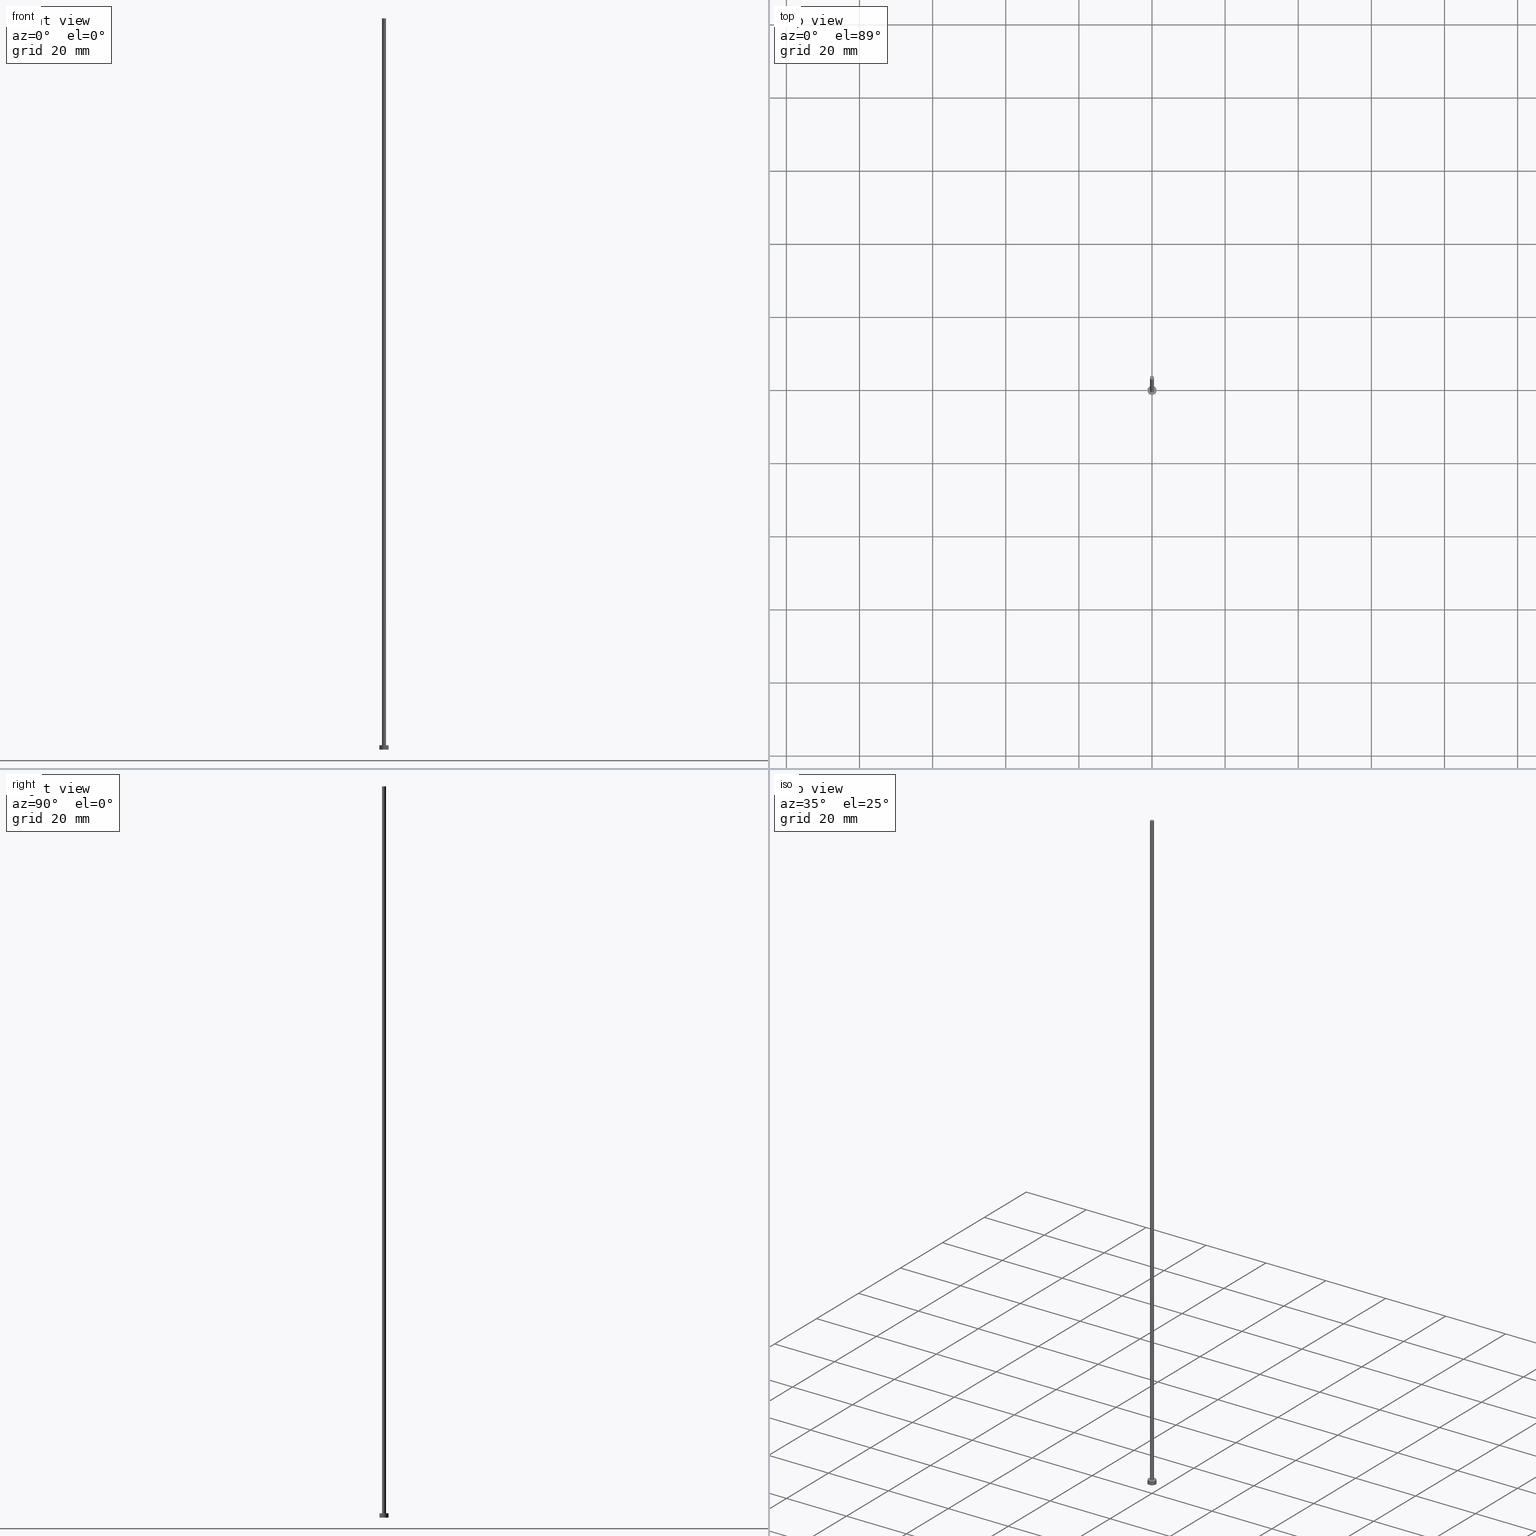
[diagram: canonical four-view strip — front | top / right | iso, engineering-drawing reading convention]
A machine part, canonical four-view strip (front | top / right | iso — engineering-drawing reading convention). The complete STEP part file that produces these views, byte-faithful:
ISO-10303-21;
HEADER;
FILE_DESCRIPTION (( 'STEP AP203' ),
    '1' );
FILE_NAME ('eeb2.STEP',
    '2026-02-06T12:33:54',
    ( '' ),
    ( '' ),
    'SwSTEP 2.0',
    'SolidWorks 2019',
    '' );
FILE_SCHEMA (( 'CONFIG_CONTROL_DESIGN' ));
ENDSEC;

DATA;
#1 = CARTESIAN_POINT ( 'NONE',  ( -0.5500000000000000444, 0.000000000000000000, 200.0000000000000000 ) ) ;
#2 = ORIENTED_EDGE ( 'NONE', *, *, #185, .F. ) ;
#3 = AXIS2_PLACEMENT_3D ( 'NONE', #98, #168, #76 ) ;
#4 = CARTESIAN_POINT ( 'NONE',  ( 0.000000000000000000, 0.000000000000000000, 1.199999999999999956 ) ) ;
#5 = ORIENTED_EDGE ( 'NONE', *, *, #52, .T. ) ;
#6 = DIRECTION ( 'NONE',  ( -0.000000000000000000, -0.000000000000000000, -1.000000000000000000 ) ) ;
#7 = CALENDAR_DATE ( 2026, 6, 2 ) ;
#8 = APPROVAL_ROLE ( '' ) ;
#9 = AXIS2_PLACEMENT_3D ( 'NONE', #122, #15, #196 ) ;
#10 = CC_DESIGN_DATE_AND_TIME_ASSIGNMENT ( #92, #163, ( #129 ) ) ;
#11 = AXIS2_PLACEMENT_3D ( 'NONE', #66, #41, #157 ) ;
#12 = EDGE_CURVE ( 'NONE', #194, #218, #204, .T. ) ;
#13 = COORDINATED_UNIVERSAL_TIME_OFFSET ( 1, 0, .AHEAD. ) ;
#14 = APPROVAL_DATE_TIME ( #93, #47 ) ;
#15 = DIRECTION ( 'NONE',  ( 0.000000000000000000, 0.000000000000000000, 1.000000000000000000 ) ) ;
#16 = CARTESIAN_POINT ( 'NONE',  ( -0.5500000000000000444, 0.000000000000000000, 200.0000000000000000 ) ) ;
#17 = VERTEX_POINT ( 'NONE', #23 ) ;
#18 = CARTESIAN_POINT ( 'NONE',  ( -0.5500000000000000444, 0.000000000000000000, 1.199999999999999956 ) ) ;
#19 = MANIFOLD_SOLID_BREP ( 'P�idat vysunut�m3', #139 ) ;
#20 = APPROVAL ( #243, 'NEUR�EN�' ) ;
#21 = EDGE_LOOP ( 'NONE', ( #5, #138 ) ) ;
#22 = PLANE ( 'NONE',  #237 ) ;
#23 = CARTESIAN_POINT ( 'NONE',  ( 0.5500000000000000444, 6.735557395310442516E-17, 200.0000000000000000 ) ) ;
#24 = CARTESIAN_POINT ( 'NONE',  ( 0.000000000000000000, 0.000000000000000000, 0.000000000000000000 ) ) ;
#25 = FACE_OUTER_BOUND ( 'NONE', #105, .T. ) ;
#26 = CC_DESIGN_PERSON_AND_ORGANIZATION_ASSIGNMENT ( #147, #165, ( #62 ) ) ;
#27 = CARTESIAN_POINT ( 'NONE',  ( 0.000000000000000000, 0.000000000000000000, 0.000000000000000000 ) ) ;
#28 = PERSON_AND_ORGANIZATION_ROLE ( 'classification_officer' ) ;
#29 = PERSON_AND_ORGANIZATION ( #177, #209 ) ;
#30 = PERSON_AND_ORGANIZATION ( #177, #209 ) ;
#31 = ADVANCED_FACE ( 'NONE', ( #89 ), #183, .T. ) ;
#32 = DIRECTION ( 'NONE',  ( -0.000000000000000000, -0.000000000000000000, -1.000000000000000000 ) ) ;
#33 = DIRECTION ( 'NONE',  ( 1.000000000000000000, 0.000000000000000000, 0.000000000000000000 ) ) ;
#34 = APPROVAL ( #186, 'NEUR�EN�' ) ;
#35 = DIRECTION ( 'NONE',  ( -0.000000000000000000, -0.000000000000000000, -1.000000000000000000 ) ) ;
#36 = ORIENTED_EDGE ( 'NONE', *, *, #120, .F. ) ;
#37 = FACE_OUTER_BOUND ( 'NONE', #63, .T. ) ;
#38 = CC_DESIGN_SECURITY_CLASSIFICATION ( #85, ( #45 ) ) ;
#39 = ORIENTED_EDGE ( 'NONE', *, *, #211, .F. ) ;
#40 = ORIENTED_EDGE ( 'NONE', *, *, #136, .T. ) ;
#41 = DIRECTION ( 'NONE',  ( -0.000000000000000000, -0.000000000000000000, -1.000000000000000000 ) ) ;
#42 = PRODUCT_DEFINITION_SHAPE ( 'NONE', 'NONE',  #129 ) ;
#43 = AXIS2_PLACEMENT_3D ( 'NONE', #215, #172, #229 ) ;
#44 = CIRCLE ( 'NONE', #187, 0.5500000000000000444 ) ;
#45 = PRODUCT_DEFINITION_FORMATION_WITH_SPECIFIED_SOURCE ( 'LIBOVOLN�', '', #62, .NOT_KNOWN. ) ;
#46 = FACE_OUTER_BOUND ( 'NONE', #153, .T. ) ;
#47 = APPROVAL ( #53, 'NEUR�EN�' ) ;
#48 = DIRECTION ( 'NONE',  ( 0.000000000000000000, 0.000000000000000000, 1.000000000000000000 ) ) ;
#49 = APPLICATION_PROTOCOL_DEFINITION ( 'international standard', 'config_control_design', 1994, #234 ) ;
#50 = COORDINATED_UNIVERSAL_TIME_OFFSET ( 1, 0, .AHEAD. ) ;
#51 = PERSON_AND_ORGANIZATION ( #177, #209 ) ;
#52 = EDGE_CURVE ( 'NONE', #126, #194, #77, .T. ) ;
#53 = APPROVAL_STATUS ( 'not_yet_approved' ) ;
#54 = PLANE ( 'NONE',  #43 ) ;
#55 = CARTESIAN_POINT ( 'NONE',  ( 0.000000000000000000, 0.000000000000000000, 200.0000000000000000 ) ) ;
#56 = ORIENTED_EDGE ( 'NONE', *, *, #193, .T. ) ;
#57 = LINE ( 'NONE', #213, #248 ) ;
#58 = LINE ( 'NONE', #16, #84 ) ;
#59 = ORIENTED_EDGE ( 'NONE', *, *, #81, .T. ) ;
#60 = EDGE_CURVE ( 'NONE', #241, #102, #233, .T. ) ;
#61 = CARTESIAN_POINT ( 'NONE',  ( 0.000000000000000000, 0.000000000000000000, 1.199999999999999956 ) ) ;
#62 = PRODUCT ( 'eeb2', 'eeb2', '', ( #111 ) ) ;
#63 = EDGE_LOOP ( 'NONE', ( #181, #2, #223, #179 ) ) ;
#64 = CARTESIAN_POINT ( 'NONE',  ( 0.5500000000000000444, 6.735557395310442516E-17, 1.199999999999999956 ) ) ;
#65 = CIRCLE ( 'NONE', #158, 1.250000000000000000 ) ;
#66 = CARTESIAN_POINT ( 'NONE',  ( 0.000000000000000000, 0.000000000000000000, 1.199999999999999956 ) ) ;
#67 = DATE_AND_TIME ( #91, #188 ) ;
#68 = SHAPE_DEFINITION_REPRESENTATION ( #42, #160 ) ;
#69 = AXIS2_PLACEMENT_3D ( 'NONE', #189, #166, #164 ) ;
#70 = APPROVAL_ROLE ( '' ) ;
#71 = CALENDAR_DATE ( 2026, 6, 2 ) ;
#72 =( NAMED_UNIT ( * ) SI_UNIT ( $, .STERADIAN. ) SOLID_ANGLE_UNIT ( ) );
#73 = LOCAL_TIME ( 13, 33, 54.00000000000000000, #115 ) ;
#74 = CARTESIAN_POINT ( 'NONE',  ( 0.000000000000000000, 0.000000000000000000, 200.0000000000000000 ) ) ;
#75 = ORIENTED_EDGE ( 'NONE', *, *, #185, .T. ) ;
#76 = DIRECTION ( 'NONE',  ( 1.000000000000000000, 0.000000000000000000, 0.000000000000000000 ) ) ;
#77 = CIRCLE ( 'NONE', #221, 1.250000000000000000 ) ;
#78 = PERSON_AND_ORGANIZATION_ROLE ( 'creator' ) ;
#79 = ORIENTED_EDGE ( 'NONE', *, *, #12, .T. ) ;
#80 = VERTEX_POINT ( 'NONE', #178 ) ;
#81 = EDGE_CURVE ( 'NONE', #80, #218, #65, .T. ) ;
#82 = LINE ( 'NONE', #231, #252 ) ;
#83 = ORIENTED_EDGE ( 'NONE', *, *, #175, .F. ) ;
#84 = VECTOR ( 'NONE', #135, 1000.000000000000000 ) ;
#85 = SECURITY_CLASSIFICATION ( '', '', #112 ) ;
#86 = EDGE_CURVE ( 'NONE', #102, #241, #254, .T. ) ;
#87 = DIRECTION ( 'NONE',  ( 1.000000000000000000, 0.000000000000000000, 0.000000000000000000 ) ) ;
#88 = CARTESIAN_POINT ( 'NONE',  ( 1.250000000000000000, 1.530808498934191571E-16, 1.199999999999999956 ) ) ;
#89 = FACE_OUTER_BOUND ( 'NONE', #195, .T. ) ;
#90 = DIRECTION ( 'NONE',  ( 0.000000000000000000, 0.000000000000000000, 1.000000000000000000 ) ) ;
#91 = CALENDAR_DATE ( 2026, 6, 2 ) ;
#92 = DATE_AND_TIME ( #7, #108 ) ;
#93 = DATE_AND_TIME ( #190, #73 ) ;
#94 = ADVANCED_FACE ( 'NONE', ( #46 ), #125, .T. ) ;
#95 = VECTOR ( 'NONE', #6, 1000.000000000000000 ) ;
#96 = ORIENTED_EDGE ( 'NONE', *, *, #228, .F. ) ;
#97 = UNCERTAINTY_MEASURE_WITH_UNIT (LENGTH_MEASURE( 1.000000000000000082E-05 ), #148, 'distance_accuracy_value', 'NONE');
#98 = CARTESIAN_POINT ( 'NONE',  ( 0.000000000000000000, 0.000000000000000000, 1.199999999999999956 ) ) ;
#99 = ORIENTED_EDGE ( 'NONE', *, *, #193, .F. ) ;
#100 = LOCAL_TIME ( 13, 33, 54.00000000000000000, #50 ) ;
#101 = CARTESIAN_POINT ( 'NONE',  ( -1.250000000000000000, 0.000000000000000000, 1.199999999999999956 ) ) ;
#102 = VERTEX_POINT ( 'NONE', #64 ) ;
#103 = ADVANCED_FACE ( 'NONE', ( #155 ), #22, .F. ) ;
#104 = DIRECTION ( 'NONE',  ( -1.000000000000000000, 0.000000000000000000, 0.000000000000000000 ) ) ;
#105 = EDGE_LOOP ( 'NONE', ( #75, #107 ) ) ;
#106 = PLANE ( 'NONE',  #227 ) ;
#107 = ORIENTED_EDGE ( 'NONE', *, *, #211, .T. ) ;
#108 = LOCAL_TIME ( 13, 33, 54.00000000000000000, #13 ) ;
#109 = ADVANCED_FACE ( 'NONE', ( #25 ), #106, .T. ) ;
#110 = DIRECTION ( 'NONE',  ( 0.000000000000000000, 0.000000000000000000, 1.000000000000000000 ) ) ;
#111 = MECHANICAL_CONTEXT ( 'NONE', #205, 'mechanical' ) ;
#112 = SECURITY_CLASSIFICATION_LEVEL ( 'unclassified' ) ;
#113 = APPROVAL_PERSON_ORGANIZATION ( #242, #34, #8 ) ;
#114 = AXIS2_PLACEMENT_3D ( 'NONE', #238, #48, #206 ) ;
#115 = COORDINATED_UNIVERSAL_TIME_OFFSET ( 1, 0, .AHEAD. ) ;
#116 = DIRECTION ( 'NONE',  ( -1.000000000000000000, 0.000000000000000000, 0.000000000000000000 ) ) ;
#117 = CIRCLE ( 'NONE', #3, 1.250000000000000000 ) ;
#118 = DIRECTION ( 'NONE',  ( -0.000000000000000000, -0.000000000000000000, -1.000000000000000000 ) ) ;
#119 = ORIENTED_EDGE ( 'NONE', *, *, #52, .F. ) ;
#120 = EDGE_CURVE ( 'NONE', #201, #241, #58, .T. ) ;
#121 = ORIENTED_EDGE ( 'NONE', *, *, #86, .F. ) ;
#122 = CARTESIAN_POINT ( 'NONE',  ( 0.000000000000000000, 0.000000000000000000, 200.0000000000000000 ) ) ;
#123 = ORIENTED_EDGE ( 'NONE', *, *, #228, .T. ) ;
#124 = CC_DESIGN_APPROVAL ( #34, ( #85 ) ) ;
#125 = CYLINDRICAL_SURFACE ( 'NONE', #133, 1.250000000000000000 ) ;
#126 = VERTEX_POINT ( 'NONE', #101 ) ;
#127 = DATE_AND_TIME ( #162, #100 ) ;
#128 =( GEOMETRIC_REPRESENTATION_CONTEXT ( 3 ) GLOBAL_UNCERTAINTY_ASSIGNED_CONTEXT ( ( #97 ) ) GLOBAL_UNIT_ASSIGNED_CONTEXT ( ( #148, #247, #72 ) ) REPRESENTATION_CONTEXT ( 'NONE', 'WORKASPACE' ) );
#129 = PRODUCT_DEFINITION ( 'NEZN�M�', '', #45, #251 ) ;
#130 = APPLICATION_PROTOCOL_DEFINITION ( 'international standard', 'config_control_design', 1994, #205 ) ;
#131 = APPROVAL_PERSON_ORGANIZATION ( #245, #20, #70 ) ;
#132 = APPROVAL_ROLE ( '' ) ;
#133 = AXIS2_PLACEMENT_3D ( 'NONE', #61, #203, #104 ) ;
#134 = FACE_OUTER_BOUND ( 'NONE', #21, .T. ) ;
#135 = DIRECTION ( 'NONE',  ( -0.000000000000000000, -0.000000000000000000, -1.000000000000000000 ) ) ;
#136 = EDGE_CURVE ( 'NONE', #17, #102, #82, .T. ) ;
#137 = FACE_BOUND ( 'NONE', #198, .T. ) ;
#138 = ORIENTED_EDGE ( 'NONE', *, *, #175, .T. ) ;
#139 = CLOSED_SHELL ( 'NONE', ( #246, #94, #31, #239, #103, #167, #109 ) ) ;
#140 = EDGE_LOOP ( 'NONE', ( #173, #99 ) ) ;
#141 = DIRECTION ( 'NONE',  ( 1.000000000000000000, 0.000000000000000000, 0.000000000000000000 ) ) ;
#142 = DIRECTION ( 'NONE',  ( 0.000000000000000000, 0.000000000000000000, 1.000000000000000000 ) ) ;
#143 = DATE_TIME_ROLE ( 'classification_date' ) ;
#144 = CIRCLE ( 'NONE', #199, 1.250000000000000000 ) ;
#145 = COORDINATED_UNIVERSAL_TIME_OFFSET ( 1, 0, .AHEAD. ) ;
#146 = CC_DESIGN_DATE_AND_TIME_ASSIGNMENT ( #67, #143, ( #85 ) ) ;
#147 = PERSON_AND_ORGANIZATION ( #177, #209 ) ;
#148 =( LENGTH_UNIT ( ) NAMED_UNIT ( * ) SI_UNIT ( .MILLI., .METRE. ) );
#149 = DIRECTION ( 'NONE',  ( 1.000000000000000000, 0.000000000000000000, 0.000000000000000000 ) ) ;
#150 = DIRECTION ( 'NONE',  ( 0.000000000000000000, 0.000000000000000000, 1.000000000000000000 ) ) ;
#151 = CC_DESIGN_PERSON_AND_ORGANIZATION_ASSIGNMENT ( #51, #184, ( #129 ) ) ;
#152 = DIRECTION ( 'NONE',  ( 1.000000000000000000, 0.000000000000000000, -0.000000000000000000 ) ) ;
#153 = EDGE_LOOP ( 'NONE', ( #83, #79, #56, #96 ) ) ;
#154 = DIRECTION ( 'NONE',  ( 0.000000000000000000, 0.000000000000000000, 1.000000000000000000 ) ) ;
#155 = FACE_OUTER_BOUND ( 'NONE', #140, .T. ) ;
#156 = CARTESIAN_POINT ( 'NONE',  ( 0.000000000000000000, 0.000000000000000000, 1.199999999999999956 ) ) ;
#157 = DIRECTION ( 'NONE',  ( -1.000000000000000000, 0.000000000000000000, 0.000000000000000000 ) ) ;
#158 = AXIS2_PLACEMENT_3D ( 'NONE', #27, #110, #87 ) ;
#159 = DIRECTION ( 'NONE',  ( 1.000000000000000000, 0.000000000000000000, 0.000000000000000000 ) ) ;
#160 = ADVANCED_BREP_SHAPE_REPRESENTATION ( 'eeb2', ( #19, #69 ), #128 ) ;
#161 = PERSON_AND_ORGANIZATION ( #177, #209 ) ;
#162 = CALENDAR_DATE ( 2026, 6, 2 ) ;
#163 = DATE_TIME_ROLE ( 'creation_date' ) ;
#164 = DIRECTION ( 'NONE',  ( 1.000000000000000000, 0.000000000000000000, 0.000000000000000000 ) ) ;
#165 = PERSON_AND_ORGANIZATION_ROLE ( 'design_owner' ) ;
#166 = DIRECTION ( 'NONE',  ( 0.000000000000000000, 0.000000000000000000, 1.000000000000000000 ) ) ;
#167 = ADVANCED_FACE ( 'NONE', ( #37 ), #249, .T. ) ;
#168 = DIRECTION ( 'NONE',  ( 0.000000000000000000, 0.000000000000000000, 1.000000000000000000 ) ) ;
#169 = CC_DESIGN_PERSON_AND_ORGANIZATION_ASSIGNMENT ( #29, #224, ( #45 ) ) ;
#170 = CARTESIAN_POINT ( 'NONE',  ( 0.000000000000000000, 0.000000000000000000, 200.0000000000000000 ) ) ;
#171 = AXIS2_PLACEMENT_3D ( 'NONE', #156, #235, #141 ) ;
#172 = DIRECTION ( 'NONE',  ( 0.000000000000000000, 0.000000000000000000, 1.000000000000000000 ) ) ;
#173 = ORIENTED_EDGE ( 'NONE', *, *, #81, .F. ) ;
#174 = CARTESIAN_POINT ( 'NONE',  ( 0.000000000000000000, 0.000000000000000000, 0.000000000000000000 ) ) ;
#175 = EDGE_CURVE ( 'NONE', #194, #126, #117, .T. ) ;
#176 = EDGE_LOOP ( 'NONE', ( #39, #40, #232, #36 ) ) ;
#177 = PERSON ( 'NEUR�EN�', 'NEUR�EN�', 'NEUR�EN�', ('NEUR�EN�'), ('NEUR�EN�'), ('NEUR�EN�') ) ;
#178 = CARTESIAN_POINT ( 'NONE',  ( -1.250000000000000000, 0.000000000000000000, 0.000000000000000000 ) ) ;
#179 = ORIENTED_EDGE ( 'NONE', *, *, #60, .T. ) ;
#180 = CARTESIAN_POINT ( 'NONE',  ( 0.000000000000000000, 0.000000000000000000, 200.0000000000000000 ) ) ;
#181 = ORIENTED_EDGE ( 'NONE', *, *, #136, .F. ) ;
#182 = APPROVAL_PERSON_ORGANIZATION ( #226, #47, #132 ) ;
#183 = CYLINDRICAL_SURFACE ( 'NONE', #11, 1.250000000000000000 ) ;
#184 = PERSON_AND_ORGANIZATION_ROLE ( 'creator' ) ;
#185 = EDGE_CURVE ( 'NONE', #201, #17, #212, .T. ) ;
#186 = APPROVAL_STATUS ( 'not_yet_approved' ) ;
#187 = AXIS2_PLACEMENT_3D ( 'NONE', #74, #150, #149 ) ;
#188 = LOCAL_TIME ( 13, 33, 54.00000000000000000, #240 ) ;
#189 = CARTESIAN_POINT ( 'NONE',  ( 0.000000000000000000, 0.000000000000000000, 0.000000000000000000 ) ) ;
#190 = CALENDAR_DATE ( 2026, 6, 2 ) ;
#191 = FACE_OUTER_BOUND ( 'NONE', #176, .T. ) ;
#192 = AXIS2_PLACEMENT_3D ( 'NONE', #170, #118, #216 ) ;
#193 = EDGE_CURVE ( 'NONE', #218, #80, #144, .T. ) ;
#194 = VERTEX_POINT ( 'NONE', #250 ) ;
#195 = EDGE_LOOP ( 'NONE', ( #219, #119, #123, #59 ) ) ;
#196 = DIRECTION ( 'NONE',  ( 1.000000000000000000, 0.000000000000000000, 0.000000000000000000 ) ) ;
#197 = CC_DESIGN_PERSON_AND_ORGANIZATION_ASSIGNMENT ( #161, #28, ( #85 ) ) ;
#198 = EDGE_LOOP ( 'NONE', ( #214, #121 ) ) ;
#199 = AXIS2_PLACEMENT_3D ( 'NONE', #174, #154, #33 ) ;
#200 = LOCAL_TIME ( 13, 33, 54.00000000000000000, #145 ) ;
#201 = VERTEX_POINT ( 'NONE', #1 ) ;
#202 = PRODUCT_RELATED_PRODUCT_CATEGORY ( 'detail', '', ( #62 ) ) ;
#203 = DIRECTION ( 'NONE',  ( -0.000000000000000000, -0.000000000000000000, -1.000000000000000000 ) ) ;
#204 = LINE ( 'NONE', #88, #95 ) ;
#205 = APPLICATION_CONTEXT ( 'configuration controlled 3d designs of mechanical parts and assemblies' ) ;
#206 = DIRECTION ( 'NONE',  ( 1.000000000000000000, 0.000000000000000000, 0.000000000000000000 ) ) ;
#207 = APPROVAL_DATE_TIME ( #127, #34 ) ;
#208 = APPROVAL_DATE_TIME ( #225, #20 ) ;
#209 = ORGANIZATION ( 'NEUR�EN�', 'NEUR�EN�', '' ) ;
#210 = CYLINDRICAL_SURFACE ( 'NONE', #244, 0.5500000000000000444 ) ;
#211 = EDGE_CURVE ( 'NONE', #17, #201, #44, .T. ) ;
#212 = CIRCLE ( 'NONE', #9, 0.5500000000000000444 ) ;
#213 = CARTESIAN_POINT ( 'NONE',  ( -1.250000000000000000, 0.000000000000000000, 1.199999999999999956 ) ) ;
#214 = ORIENTED_EDGE ( 'NONE', *, *, #60, .F. ) ;
#215 = CARTESIAN_POINT ( 'NONE',  ( 0.000000000000000000, 0.000000000000000000, 1.199999999999999956 ) ) ;
#216 = DIRECTION ( 'NONE',  ( -1.000000000000000000, 0.000000000000000000, 0.000000000000000000 ) ) ;
#217 = CC_DESIGN_APPROVAL ( #47, ( #129 ) ) ;
#218 = VERTEX_POINT ( 'NONE', #230 ) ;
#219 = ORIENTED_EDGE ( 'NONE', *, *, #12, .F. ) ;
#220 = CC_DESIGN_PERSON_AND_ORGANIZATION_ASSIGNMENT ( #30, #78, ( #45 ) ) ;
#221 = AXIS2_PLACEMENT_3D ( 'NONE', #4, #90, #159 ) ;
#222 = DIRECTION ( 'NONE',  ( 1.000000000000000000, 0.000000000000000000, -0.000000000000000000 ) ) ;
#223 = ORIENTED_EDGE ( 'NONE', *, *, #120, .T. ) ;
#224 = PERSON_AND_ORGANIZATION_ROLE ( 'design_supplier' ) ;
#225 = DATE_AND_TIME ( #71, #200 ) ;
#226 = PERSON_AND_ORGANIZATION ( #177, #209 ) ;
#227 = AXIS2_PLACEMENT_3D ( 'NONE', #180, #255, #152 ) ;
#228 = EDGE_CURVE ( 'NONE', #126, #80, #57, .T. ) ;
#229 = DIRECTION ( 'NONE',  ( 1.000000000000000000, 0.000000000000000000, -0.000000000000000000 ) ) ;
#230 = CARTESIAN_POINT ( 'NONE',  ( 1.250000000000000000, 1.530808498934191571E-16, 0.000000000000000000 ) ) ;
#231 = CARTESIAN_POINT ( 'NONE',  ( 0.5500000000000000444, 6.735557395310442516E-17, 200.0000000000000000 ) ) ;
#232 = ORIENTED_EDGE ( 'NONE', *, *, #86, .T. ) ;
#233 = CIRCLE ( 'NONE', #114, 0.5500000000000000444 ) ;
#234 = APPLICATION_CONTEXT ( 'configuration controlled 3d designs of mechanical parts and assemblies' ) ;
#235 = DIRECTION ( 'NONE',  ( 0.000000000000000000, 0.000000000000000000, 1.000000000000000000 ) ) ;
#236 = CC_DESIGN_APPROVAL ( #20, ( #45 ) ) ;
#237 = AXIS2_PLACEMENT_3D ( 'NONE', #24, #142, #222 ) ;
#238 = CARTESIAN_POINT ( 'NONE',  ( 0.000000000000000000, 0.000000000000000000, 1.199999999999999956 ) ) ;
#239 = ADVANCED_FACE ( 'NONE', ( #137, #134 ), #54, .T. ) ;
#240 = COORDINATED_UNIVERSAL_TIME_OFFSET ( 1, 0, .AHEAD. ) ;
#241 = VERTEX_POINT ( 'NONE', #18 ) ;
#242 = PERSON_AND_ORGANIZATION ( #177, #209 ) ;
#243 = APPROVAL_STATUS ( 'not_yet_approved' ) ;
#244 = AXIS2_PLACEMENT_3D ( 'NONE', #55, #32, #116 ) ;
#245 = PERSON_AND_ORGANIZATION ( #177, #209 ) ;
#246 = ADVANCED_FACE ( 'NONE', ( #191 ), #210, .T. ) ;
#247 =( NAMED_UNIT ( * ) PLANE_ANGLE_UNIT ( ) SI_UNIT ( $, .RADIAN. ) );
#248 = VECTOR ( 'NONE', #35, 1000.000000000000000 ) ;
#249 = CYLINDRICAL_SURFACE ( 'NONE', #192, 0.5500000000000000444 ) ;
#250 = CARTESIAN_POINT ( 'NONE',  ( 1.250000000000000000, 1.530808498934191571E-16, 1.199999999999999956 ) ) ;
#251 = DESIGN_CONTEXT ( 'detailed design', #234, 'design' ) ;
#252 = VECTOR ( 'NONE', #253, 1000.000000000000000 ) ;
#253 = DIRECTION ( 'NONE',  ( -0.000000000000000000, -0.000000000000000000, -1.000000000000000000 ) ) ;
#254 = CIRCLE ( 'NONE', #171, 0.5500000000000000444 ) ;
#255 = DIRECTION ( 'NONE',  ( 0.000000000000000000, 0.000000000000000000, 1.000000000000000000 ) ) ;
ENDSEC;
END-ISO-10303-21;
